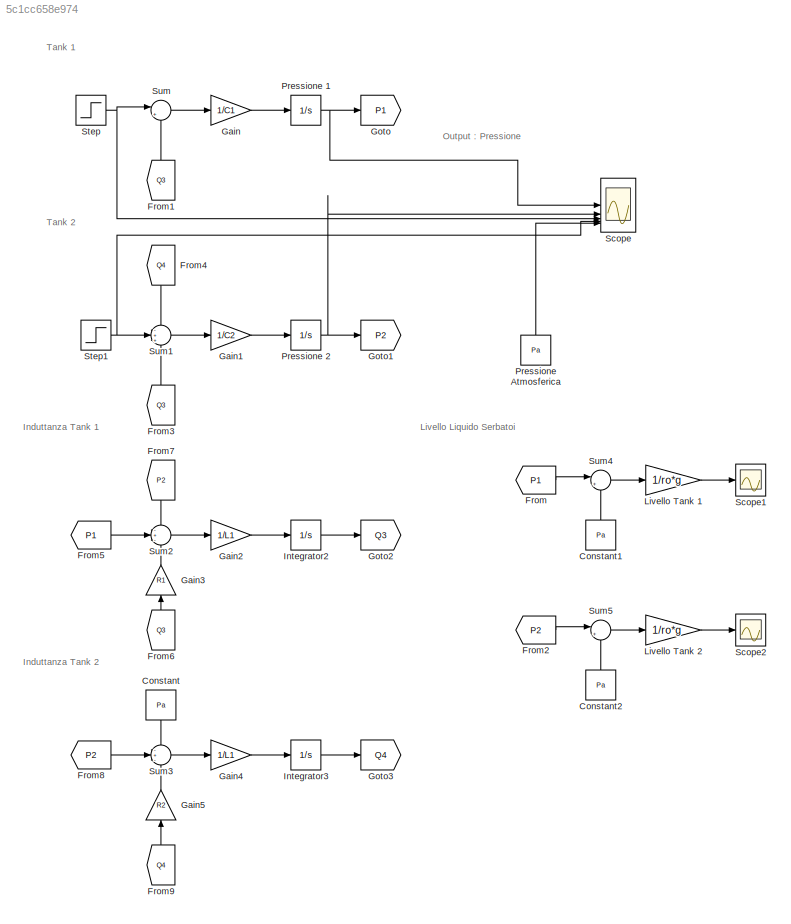
MODEL slx_5c1cc658e974
KIND model
CONFIG AbsTol = auto
CONFIG EnableMultiTasking = off
CONFIG FixedStep = auto
CONFIG MaxStep = auto
CONFIG MinStep = auto
CONFIG RelTol = 1e-3
CONFIG SampleTimeConstraint = Unconstrained
CONFIG SolverName = VariableStepAuto
CONFIG StartTime = 0.0
CONFIG StopTime = 5000
BLOCK [Constant] Constant
  NameLocation = left
  Value = Pa
BLOCK [Constant] Constant1
  NameLocation = right
  Value = Pa
BLOCK [Constant] Constant2
  NameLocation = right
  Value = Pa
BLOCK [From] From
  GotoTag = P1
BLOCK [From] From1
  GotoTag = Q3
  NameLocation = right
BLOCK [From] From2
  GotoTag = P2
BLOCK [From] From3
  GotoTag = Q3
  NameLocation = right
BLOCK [From] From4
  GotoTag = Q4
  NameLocation = left
BLOCK [From] From5
  GotoTag = P1
BLOCK [From] From6
  GotoTag = Q3
  NameLocation = right
BLOCK [From] From7
  GotoTag = P2
  NameLocation = left
BLOCK [From] From8
  GotoTag = P2
BLOCK [From] From9
  GotoTag = Q4
  NameLocation = right
BLOCK [Gain] Gain
  Gain = 1/C1
BLOCK [Gain] Gain1
  Gain = 1/C2
BLOCK [Gain] Gain2
  Gain = 1/L1
BLOCK [Gain] Gain3
  Gain = R1
  NameLocation = right
BLOCK [Gain] Gain4
  Gain = 1/L1
BLOCK [Gain] Gain5
  Gain = R2
  NameLocation = right
BLOCK [Goto] Goto
  GotoTag = P1
BLOCK [Goto] Goto1
  GotoTag = P2
BLOCK [Goto] Goto2
  GotoTag = Q3
BLOCK [Goto] Goto3
  GotoTag = Q4
BLOCK [Integrator] Integrator2
BLOCK [Integrator] Integrator3
BLOCK [Gain] Livello Tank 1
  Gain = 1/ro*g
BLOCK [Gain] Livello Tank 2
  Gain = 1/ro*g
BLOCK [Integrator] Pressione 1
BLOCK [Integrator] Pressione 2
BLOCK [Constant] Pressione Atmosferica
  NameLocation = right
  Value = Pa
BLOCK [Scope] Scope
  Floating = off
  NumInputPorts = 5
  ScopeSpecificationString = Simulink.scopes.TimeScopeBlockCfg('CurrentConfiguration', extmgr.ConfigurationSet(extmgr.Configuration('Core','General UI',true),extmgr.Configuration('Core','Source UI',true),extmgr.Configuration('Sources','WiredSimulink',true),extmgr.Configuration('Visuals','Time Domain',true,'SerializedDisplays',{struct('MinYLimReal','-1.87242','MaxYLimReal','16.85181','YLabelReal','','MinYLimMag','0.00000','Max...<+1413ch>
BLOCK [Scope] Scope1
  Floating = off
  NumInputPorts = 1
  ScopeSpecificationString = Simulink.scopes.TimeScopeBlockCfg('CurrentConfiguration', extmgr.ConfigurationSet(extmgr.Configuration('Core','General UI',true),extmgr.Configuration('Core','Source UI',true),extmgr.Configuration('Sources','WiredSimulink',true,'DataLoggingVariableName','ScopeData1'),extmgr.Configuration('Visuals','Time Domain',true,'SerializedDisplays',{struct('MinYLimReal','-0.0108','MaxYLimReal','-0.00091','YLab...<+1371ch>
BLOCK [Scope] Scope2
  Floating = off
  NumInputPorts = 1
  ScopeSpecificationString = Simulink.scopes.TimeScopeBlockCfg('CurrentConfiguration', extmgr.ConfigurationSet(extmgr.Configuration('Core','General UI',true),extmgr.Configuration('Core','Source UI',true),extmgr.Configuration('Sources','WiredSimulink',true,'DataLoggingVariableName','ScopeData2'),extmgr.Configuration('Visuals','Time Domain',true),extmgr.Configuration('Tools','Plot Navigation',true),extmgr.Configuration('Tools',...<+40ch>
BLOCK [Step] Step
  After = Q12
  Before = Q11
  SampleTime = 0.1
  Time = 1500
BLOCK [Step] Step1
  After = Q22
  Before = Q21
  SampleTime = 0.1
  Time = 3500
BLOCK [Sum] Sum
  Inputs = |+-
BLOCK [Sum] Sum1
  Inputs = -++
BLOCK [Sum] Sum2
  Inputs = -+-
BLOCK [Sum] Sum3
  Inputs = -+-
BLOCK [Sum] Sum4
  Inputs = |+-
BLOCK [Sum] Sum5
  Inputs = |+-
ANNOTATION (root): Induttanza Tank 1
ANNOTATION (root): Induttanza Tank 2
ANNOTATION (root): Livello Liquido Serbatoi
ANNOTATION (root): Output : Pressione
ANNOTATION (root): Tank 1
ANNOTATION (root): Tank 2
LINE Constant1:1 -> Sum4:2
LINE Constant2:1 -> Sum5:2
LINE Constant:1 -> Sum3:1
LINE From1:1 -> Sum:2
LINE From2:1 -> Sum5:1
LINE From3:1 -> Sum1:3
LINE From4:1 -> Sum1:1
LINE From5:1 -> Sum2:2
LINE From6:1 -> Gain3:1
LINE From7:1 -> Sum2:1
LINE From8:1 -> Sum3:2
LINE From9:1 -> Gain5:1
LINE From:1 -> Sum4:1
LINE Gain1:1 -> Pressione 2:1
LINE Gain2:1 -> Integrator2:1
LINE Gain3:1 -> Sum2:3
LINE Gain4:1 -> Integrator3:1
LINE Gain5:1 -> Sum3:3
LINE Gain:1 -> Pressione 1:1
LINE Integrator2:1 -> Goto2:1
LINE Integrator3:1 -> Goto3:1
LINE Livello Tank 1:1 -> Scope1:1
LINE Livello Tank 2:1 -> Scope2:1
NET Pressione 1:1 -> Goto:1, Scope:1
NET Pressione 2:1 -> Goto1:1, Scope:2
LINE Pressione Atmosferica:1 -> Scope:5
NET Step1:1 -> Scope:4, Sum1:2
NET Step:1 -> Scope:3, Sum:1
LINE Sum1:1 -> Gain1:1
LINE Sum2:1 -> Gain2:1
LINE Sum3:1 -> Gain4:1
LINE Sum4:1 -> Livello Tank 1:1
LINE Sum5:1 -> Livello Tank 2:1
LINE Sum:1 -> Gain:1
note: NET lines group one-source signal fan-out (src -> all destinations, sorted); 1:1 wires keep LINE
